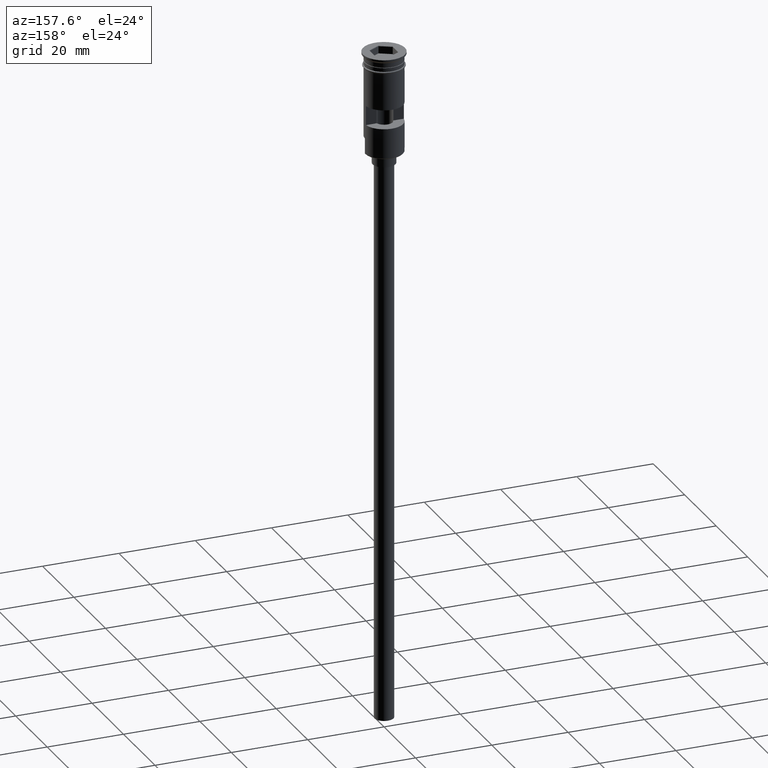
[diagram: clean part render]
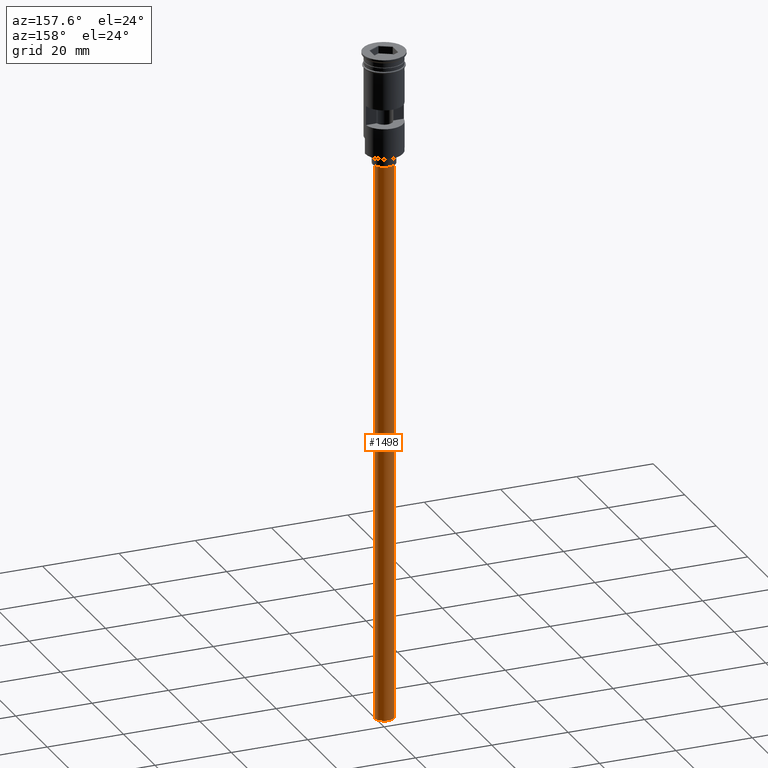
[diagram: same view with one face highlighted and labeled with its STEP entity id]
A machine part, auxiliary view. The second image highlights one B-rep face of the part: STEP entity #1498.
In plain terms, the highlighted cylindrical surface (edge-blend (fillet) strip) has radius 2.5 mm, axis along (-0, -0, 1).
Its self-contained STEP definition (entity closure, byte-faithful):
#37 = CARTESIAN_POINT ( 'NONE',  ( 0.000000000000000000, 0.000000000000000000, -176.5000000000000000 ) ) ;
#102 = LINE ( 'NONE', #1587, #722 ) ;
#141 = DIRECTION ( 'NONE',  ( -1.000000000000000000, 0.000000000000000000, 0.000000000000000000 ) ) ;
#150 = CIRCLE ( 'NONE', #822, 2.500000000000000000 ) ;
#199 = ORIENTED_EDGE ( 'NONE', *, *, #520, .F. ) ;
#246 = DIRECTION ( 'NONE',  ( -0.000000000000000000, -0.000000000000000000, 1.000000000000000000 ) ) ;
#279 = ORIENTED_EDGE ( 'NONE', *, *, #1165, .T. ) ;
#293 = ORIENTED_EDGE ( 'NONE', *, *, #1358, .T. ) ;
#335 = CIRCLE ( 'NONE', #1603, 2.500000000000000000 ) ;
#368 = CARTESIAN_POINT ( 'NONE',  ( -2.500000000000000000, 3.061616997868383141E-16, -176.5000000000000000 ) ) ;
#461 = VECTOR ( 'NONE', #246, 1000.000000000000000 ) ;
#479 = DIRECTION ( 'NONE',  ( -0.000000000000000000, -0.000000000000000000, 1.000000000000000000 ) ) ;
#497 = CARTESIAN_POINT ( 'NONE',  ( 0.000000000000000000, 0.000000000000000000, -176.5000000000000000 ) ) ;
#520 = EDGE_CURVE ( 'NONE', #1383, #1585, #150, .T. ) ;
#581 = DIRECTION ( 'NONE',  ( -1.000000000000000000, 0.000000000000000000, 0.000000000000000000 ) ) ;
#587 = EDGE_LOOP ( 'NONE', ( #199, #293, #279, #786 ) ) ;
#647 = AXIS2_PLACEMENT_3D ( 'NONE', #37, #1139, #770 ) ;
#722 = VECTOR ( 'NONE', #479, 1000.000000000000000 ) ;
#741 = CARTESIAN_POINT ( 'NONE',  ( -2.500000000000000000, 3.061616997868383141E-16, -176.5000000000000000 ) ) ;
#762 = EDGE_CURVE ( 'NONE', #1585, #1249, #102, .T. ) ;
#770 = DIRECTION ( 'NONE',  ( 1.000000000000000000, 0.000000000000000000, 0.000000000000000000 ) ) ;
#786 = ORIENTED_EDGE ( 'NONE', *, *, #762, .F. ) ;
#806 = FACE_OUTER_BOUND ( 'NONE', #587, .T. ) ;
#822 = AXIS2_PLACEMENT_3D ( 'NONE', #497, #998, #141 ) ;
#952 = CARTESIAN_POINT ( 'NONE',  ( 2.500000000000000000, 0.000000000000000000, -29.50000000000000000 ) ) ;
#998 = DIRECTION ( 'NONE',  ( 0.000000000000000000, 0.000000000000000000, -1.000000000000000000 ) ) ;
#1062 = CARTESIAN_POINT ( 'NONE',  ( 2.500000000000000000, 0.000000000000000000, -176.5000000000000000 ) ) ;
#1101 = CARTESIAN_POINT ( 'NONE',  ( -2.500000000000000000, 3.061616997868383141E-16, -29.50000000000000000 ) ) ;
#1139 = DIRECTION ( 'NONE',  ( -0.000000000000000000, -0.000000000000000000, 1.000000000000000000 ) ) ;
#1165 = EDGE_CURVE ( 'NONE', #1321, #1249, #335, .T. ) ;
#1212 = DIRECTION ( 'NONE',  ( 0.000000000000000000, 0.000000000000000000, -1.000000000000000000 ) ) ;
#1249 = VERTEX_POINT ( 'NONE', #952 ) ;
#1321 = VERTEX_POINT ( 'NONE', #1101 ) ;
#1358 = EDGE_CURVE ( 'NONE', #1383, #1321, #1497, .T. ) ;
#1383 = VERTEX_POINT ( 'NONE', #741 ) ;
#1420 = CYLINDRICAL_SURFACE ( 'NONE', #647, 2.500000000000000000 ) ;
#1497 = LINE ( 'NONE', #368, #461 ) ;
#1498 = ADVANCED_FACE ( 'NONE', ( #806 ), #1420, .T. ) ;
#1585 = VERTEX_POINT ( 'NONE', #1062 ) ;
#1587 = CARTESIAN_POINT ( 'NONE',  ( 2.500000000000000000, 0.000000000000000000, -176.5000000000000000 ) ) ;
#1593 = CARTESIAN_POINT ( 'NONE',  ( 0.000000000000000000, 0.000000000000000000, -29.50000000000000000 ) ) ;
#1603 = AXIS2_PLACEMENT_3D ( 'NONE', #1593, #1212, #581 ) ;